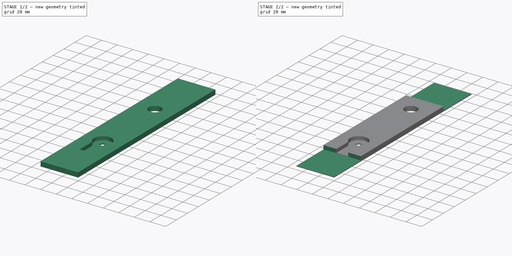
[diagram: build sequence overview — one tinted view per stage of 2, left to right]
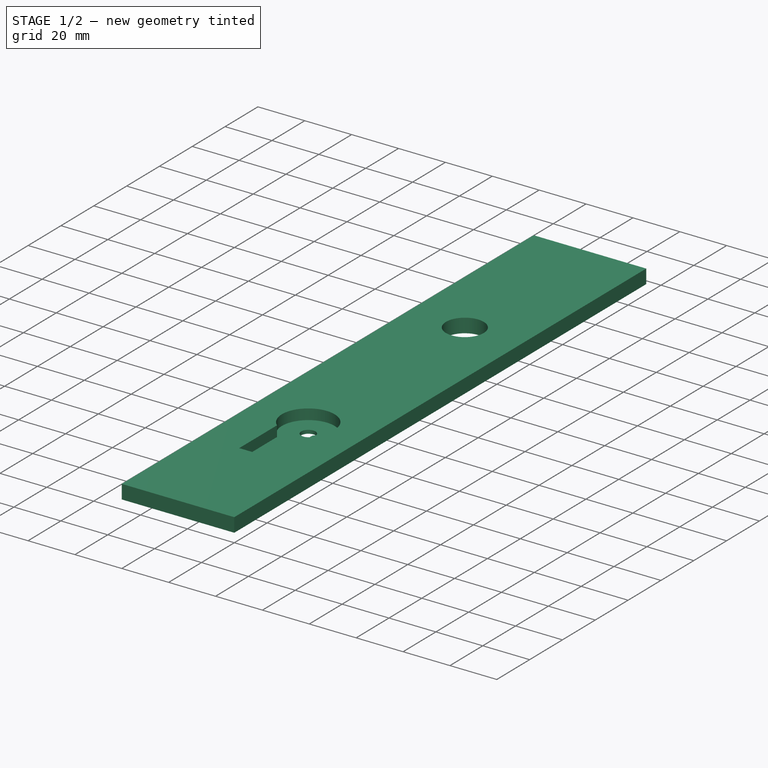
[diagram: stage 1 of 2 — iso view after this stage's code; geometry added in this stage tinted green]
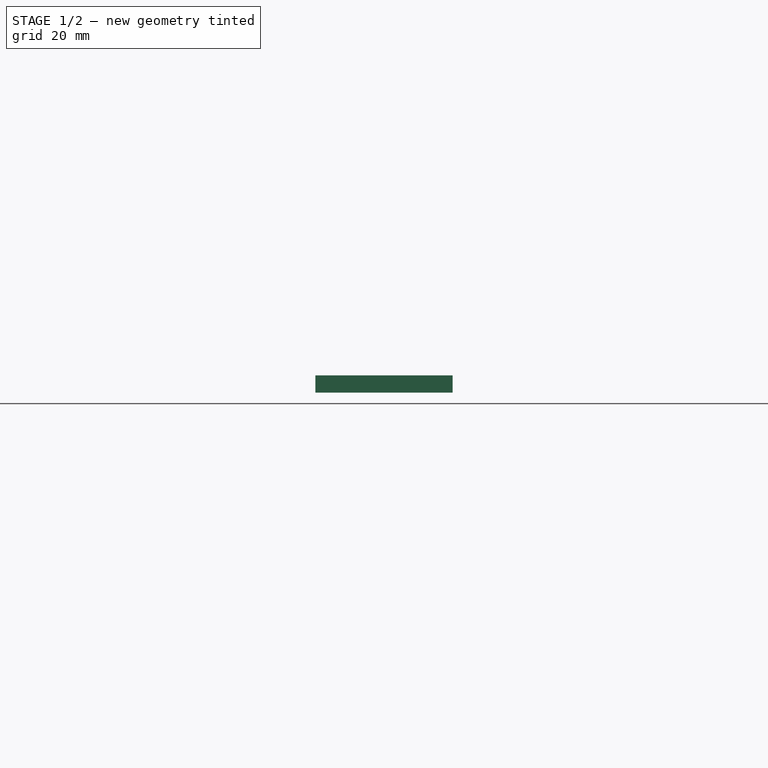
[diagram: stage 1 of 2 — front view after this stage's code; geometry added in this stage tinted green]
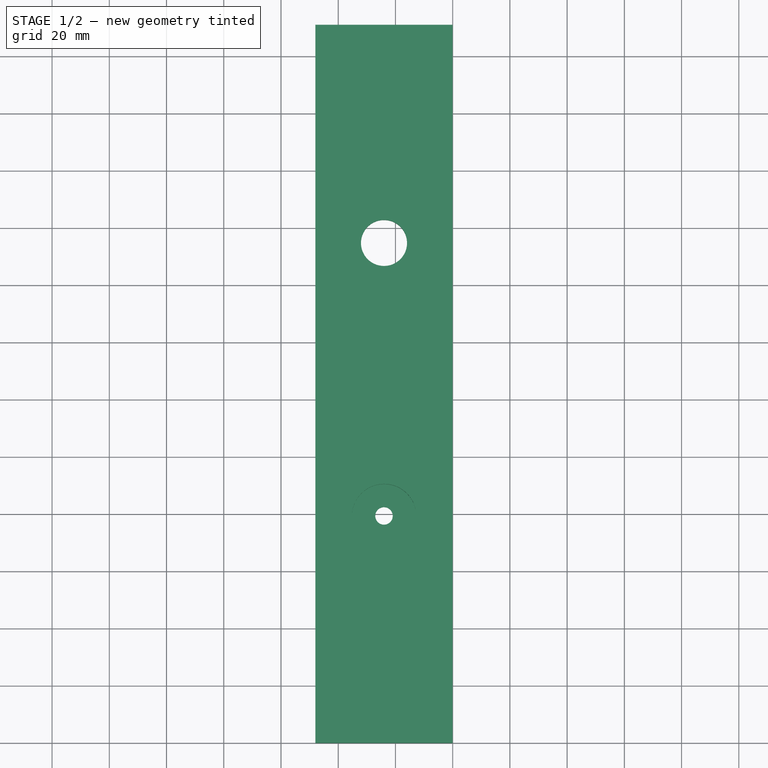
[diagram: stage 1 of 2 — top view after this stage's code; geometry added in this stage tinted green]
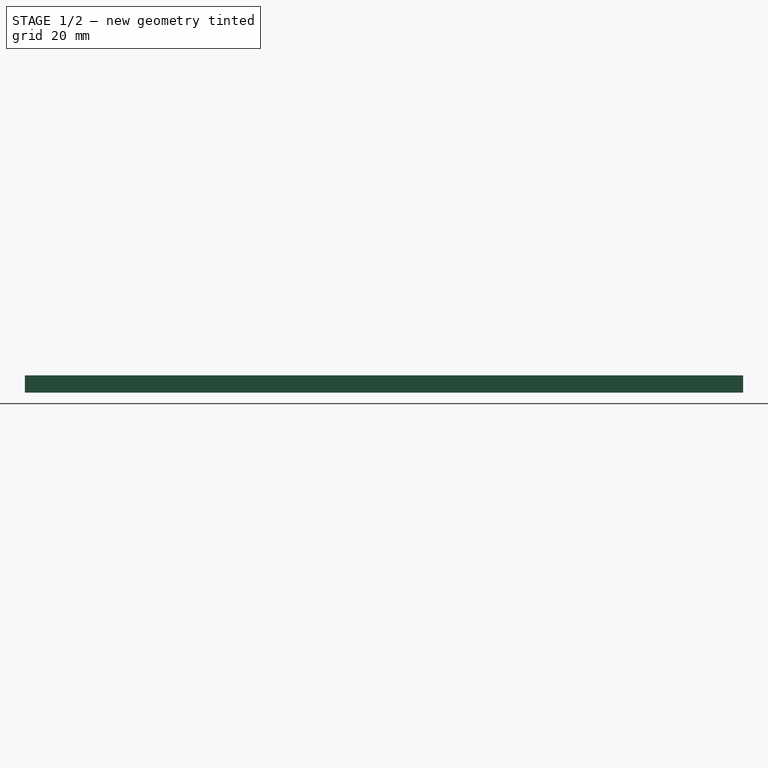
[diagram: stage 1 of 2 — right view after this stage's code; geometry added in this stage tinted green]
FCSTD DOCUMENT  (FreeCAD 0.18R16146 (Git))
Label: plate1
License: All rights reserved
LicenseURL: http://en.wikipedia.org/wiki/All_rights_reserved
objects: Sketcher::SketchObject×4, PartDesign::Pocket×3, PartDesign::Pad×1, PartDesign::Body×1
note: 13 computed .brp shape members not serialized (recipe doc carries the construction recipe); baked Part::Feature solids carry a one-line shape summary decoded from their .brp

FEATURE [Sketcher::SketchObject] Sketch
  MapMode = 5
  Support = -> [XY_Plane]
  sketch-geometry (6):
    g0: LineSegment StartX=0 StartY=-3.97172e-06 StartZ=0 EndX=-48 EndY=-3.97172e-06 EndZ=0
    g1: LineSegment StartX=-48 StartY=-3.97172e-06 StartZ=0 EndX=-48 EndY=251 EndZ=0
    g2: LineSegment StartX=-48 StartY=251 StartZ=0 EndX=0 EndY=251 EndZ=0
    g3: LineSegment StartX=0 StartY=251 StartZ=0 EndX=0 EndY=-3.97172e-06 EndZ=0
    g4: Circle CenterX=-24 CenterY=174.761 CenterZ=0 NormalX=0 NormalY=0 NormalZ=1 AngleXU=0 Radius=8.05
    g5: Circle CenterX=-24 CenterY=79.41 CenterZ=0 NormalX=0 NormalY=0 NormalZ=1 AngleXU=0 Radius=3.05
  constraints (17):
    c: Coincident(g0,g1)
    c: Coincident(g1,g2)
    c: Coincident(g2,g3)
    c: Coincident(g3,g0)
    c: Horizontal(g0)
    c: Horizontal(g2)
    c: Vertical(g1)
    c: Vertical(g3)
    c: Coincident(g0,g-1)
    c: DistanceX(g2,g2) = 48
    c: DistanceY(g1,g1) = 251
    c: Radius(g4) = 8.05
    c: DistanceX(g4,g0) = 24
    c: Radius(g5) = 3.05
    c: DistanceX(g5,g0) = 24
    c: DistanceY(g5) = 79.41
    c: DistanceY(g4) = 174.761
FEATURE [PartDesign::Pad] Pad
  Length = 6
  Length2 = 100
  Profile = -> Sketch
  Reversed = true
  Type = 0
FEATURE [Sketcher::SketchObject] Sketch001
  MapMode = 5
  Support = -> [XY_Plane]
  sketch-geometry (4):
    g0: LineSegment StartX=-31.3467 StartY=47.7876 StartZ=0 EndX=-16.3467 EndY=47.7876 EndZ=0
    g1: LineSegment StartX=-16.3467 StartY=47.7876 StartZ=0 EndX=-16.3467 EndY=71.0171 EndZ=0
    g2: LineSegment StartX=-31.3467 StartY=70.8198 StartZ=0 EndX=-31.3467 EndY=47.7876 EndZ=0
    g3: ArcOfCircle CenterX=-23.9567 CenterY=79.286 CenterZ=0 NormalX=0 NormalY=0 NormalZ=1 AngleXU=0 Radius=11.2378 StartAngle=5.45632 EndAngle=10.2779
  constraints (13):
    c: Coincident(g0,g1)
    c: Horizontal(g0)
    c: Vertical(g1)
    c: Vertical(g2)
    c: DistanceY(g2) = 70.8198
    c: DistanceX(g0,g0) = 15
    c: Coincident(g2,g0)
    c: DistanceX(g0) = -31.3467
    c: DistanceY(g0) = 47.7876
    c: Coincident(g3,g1)
    c: Coincident(g3,g2)
    c: DistanceX(g3) = -23.9567
    c: DistanceY(g3) = 79.286
FEATURE [PartDesign::Pocket] Pocket
  BaseFeature = -> Pad
  Length = 4.5
  Length2 = 100
  Profile = -> Sketch001
  Type = 0
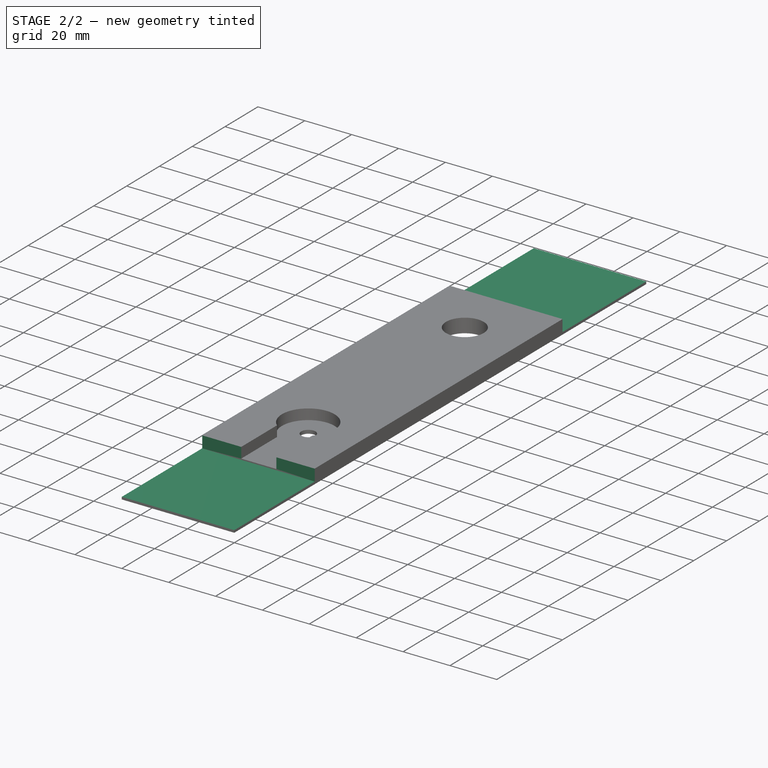
[diagram: stage 2 of 2 — iso view after this stage's code; geometry added in this stage tinted green]
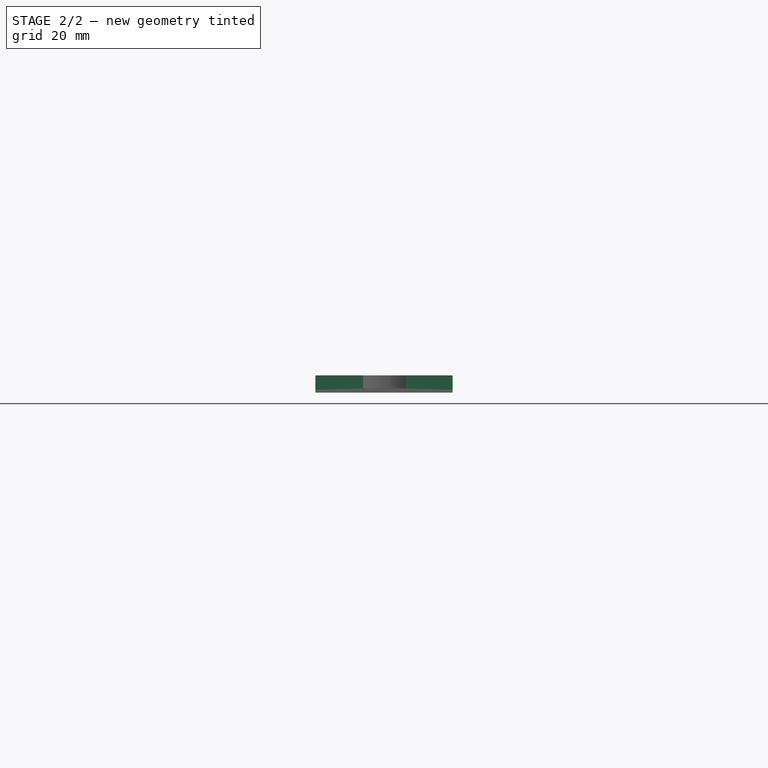
[diagram: stage 2 of 2 — front view after this stage's code; geometry added in this stage tinted green]
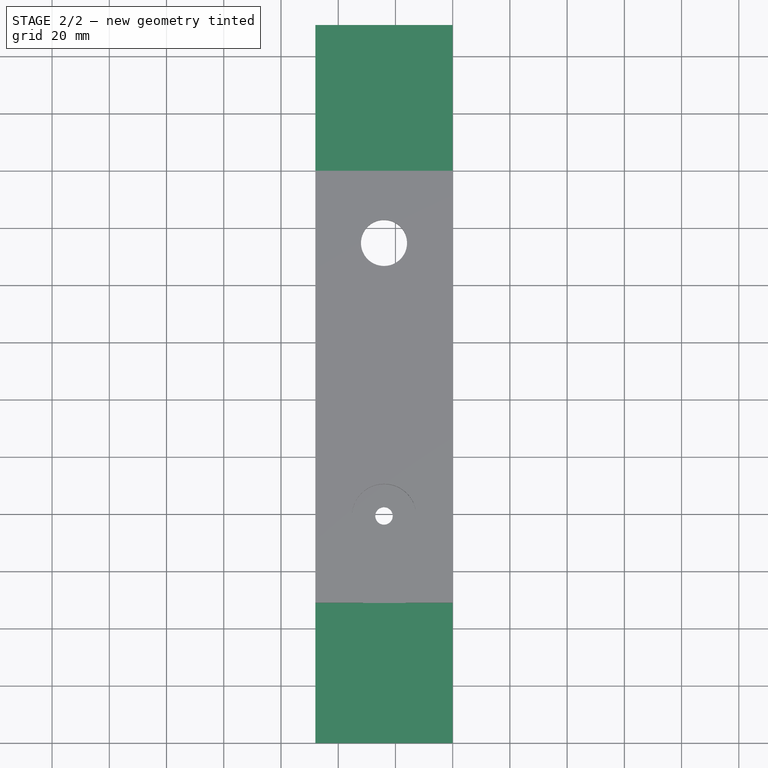
[diagram: stage 2 of 2 — top view after this stage's code; geometry added in this stage tinted green]
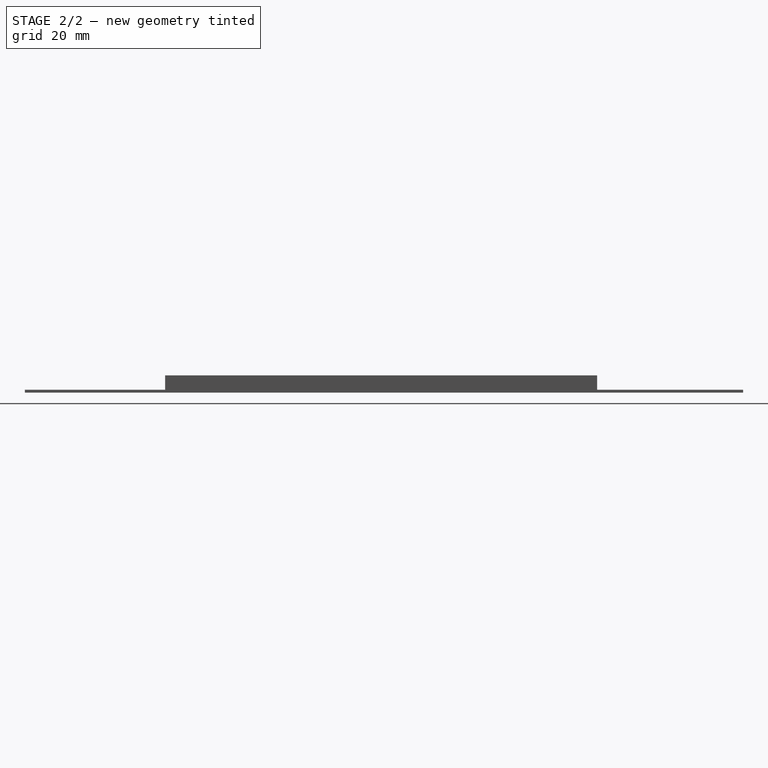
[diagram: stage 2 of 2 — right view after this stage's code; geometry added in this stage tinted green]
FEATURE [Sketcher::SketchObject] Sketch002
  AttachmentOffset = pos=(0,0,-5) rot=(0,0,1;0rad)
  MapMode = 5
  Placement = pos=(0,0,-5) rot=(0,0,1;0rad)
  Support = -> [XY_Plane]
  sketch-geometry (4):
    g0: LineSegment StartX=0.1 StartY=-3.97175e-06 StartZ=0 EndX=-48 EndY=-3.97175e-06 EndZ=0
    g1: LineSegment StartX=-48 StartY=-3.97175e-06 StartZ=0 EndX=-48 EndY=49 EndZ=0
    g2: LineSegment StartX=-48 StartY=49 StartZ=0 EndX=0.1 EndY=49 EndZ=0
    g3: LineSegment StartX=0.1 StartY=49 StartZ=0 EndX=0.1 EndY=-3.97175e-06 EndZ=0
  constraints (12):
    c: Coincident(g0,g1)
    c: Coincident(g1,g2)
    c: Coincident(g2,g3)
    c: Horizontal(g0)
    c: Horizontal(g2)
    c: Vertical(g1)
    c: Vertical(g3)
    c: DistanceY(g1,g1) = 49
    c: DistanceX(g0,g0) = 48.1
    c: PointOnObject(g3,g-1)
    c: DistanceX(g-1,g3) = 0.1
    c: Coincident(g3,g0)
FEATURE [PartDesign::Pocket] Pocket001
  BaseFeature = -> Pocket
  Length = 5
  Length2 = 100
  Profile = -> Sketch002
  Reversed = true
  Type = 1
FEATURE [Sketcher::SketchObject] Sketch003
  AttachmentOffset = pos=(0,0,-5) rot=(0,0,1;0rad)
  MapMode = 5
  Placement = pos=(0,0,-5) rot=(0,0,1;0rad)
  Support = -> [XY_Plane]
  sketch-geometry (4):
    g0: LineSegment StartX=-48 StartY=252 StartZ=0 EndX=0.1 EndY=252 EndZ=0
    g1: LineSegment StartX=0.1 StartY=252 StartZ=0 EndX=0.1 EndY=200 EndZ=0
    g2: LineSegment StartX=0.1 StartY=200 StartZ=0 EndX=-48 EndY=200 EndZ=0
    g3: LineSegment StartX=-48 StartY=200 StartZ=0 EndX=-48 EndY=252 EndZ=0
  constraints (12):
    c: Coincident(g0,g1)
    c: Coincident(g1,g2)
    c: Coincident(g2,g3)
    c: Coincident(g3,g0)
    c: Horizontal(g0)
    c: Horizontal(g2)
    c: Vertical(g1)
    c: Vertical(g3)
    c: DistanceY(g-1,g0) = 252
    c: DistanceX(g2,g-1) = 48
    c: DistanceX(g-1,g1) = 0.1
    c: DistanceY(g3,g3) = 52
FEATURE [PartDesign::Pocket] Pocket002
  BaseFeature = -> Pocket001
  Length = 5
  Length2 = 100
  Profile = -> Sketch003
  Reversed = true
  Type = 1
FEATURE [PartDesign::Body] Body
  Group = -> [Sketch,Pad,Sketch001,Pocket,Sketch002,Pocket001,Sketch003,Pocket002]
  Origin = -> Origin
  Tip = -> Pocket002
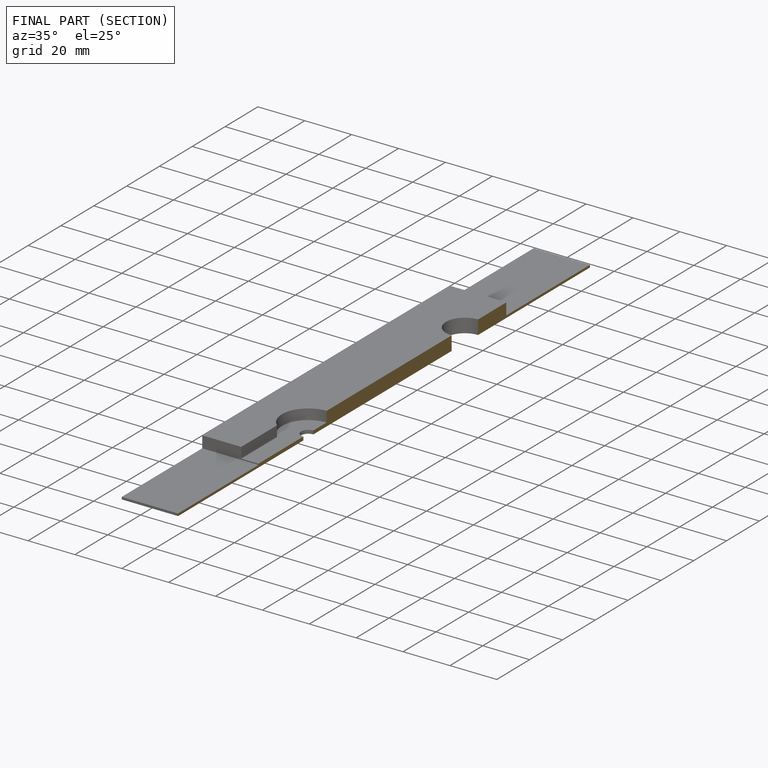
[diagram: finished part — half-section view (interior)]
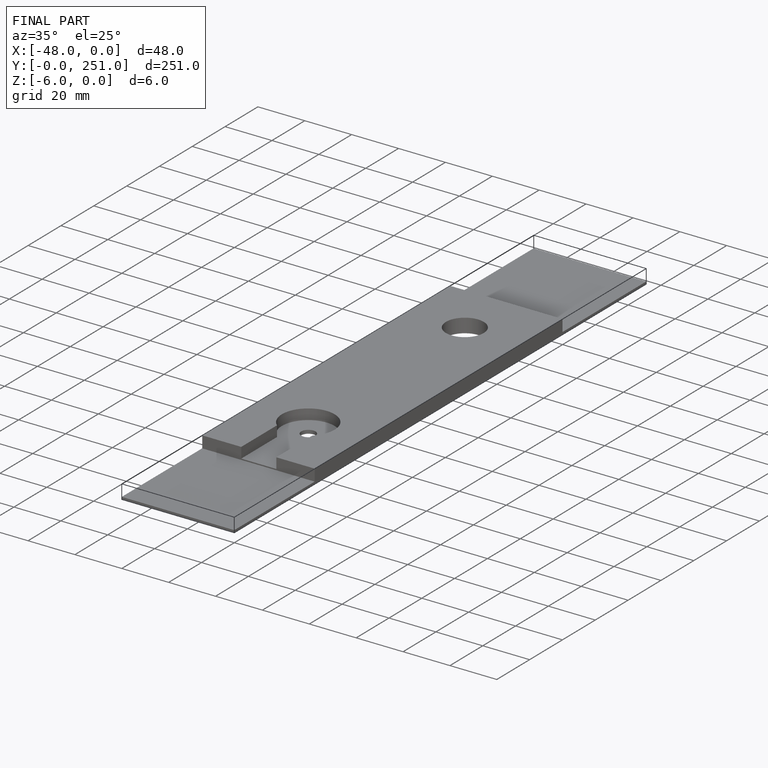
[diagram: finished part — iso view with bounding-box wireframe]
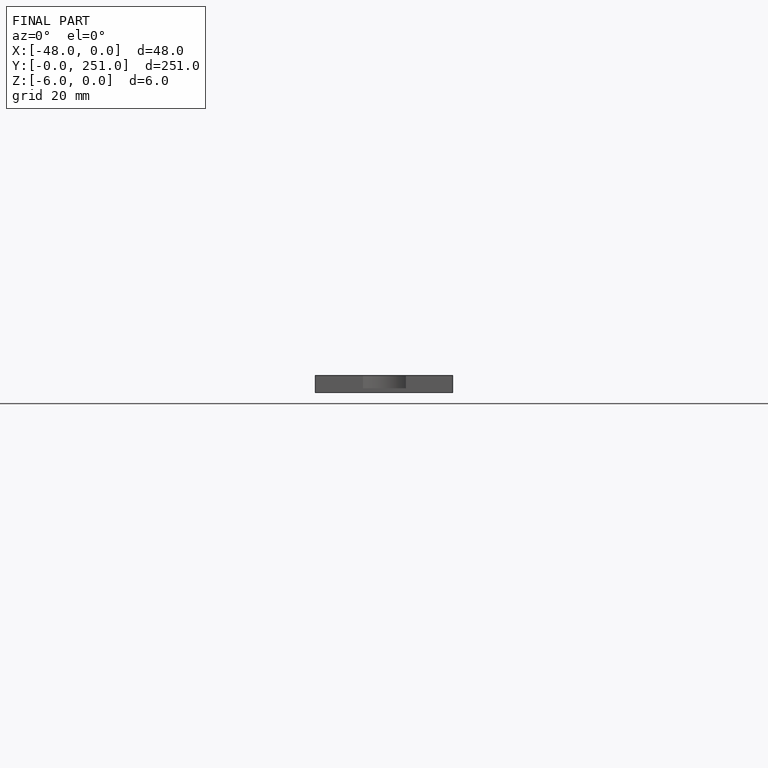
[diagram: finished part — front view with bounding-box wireframe]
